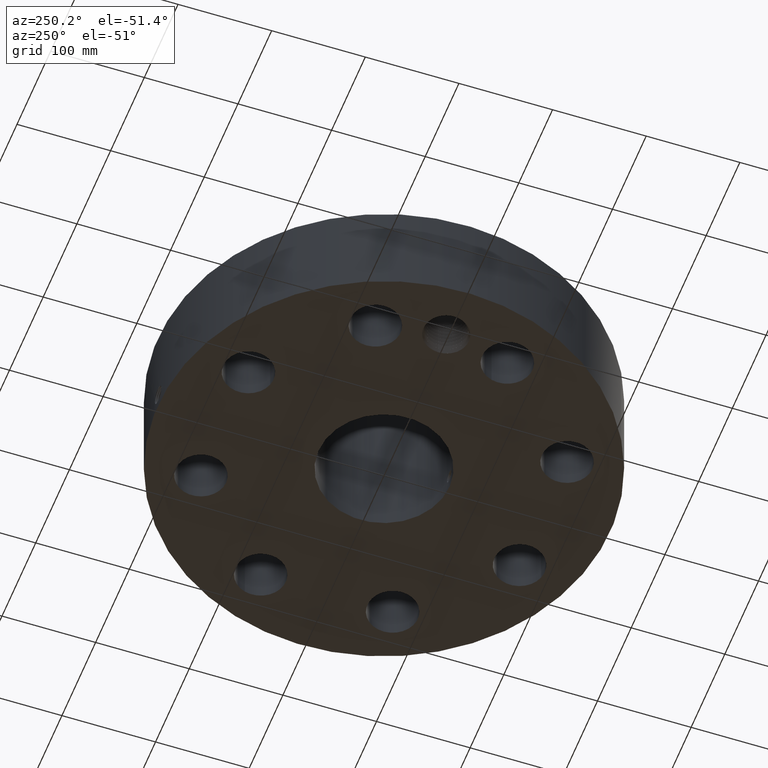
[diagram: clean part render]
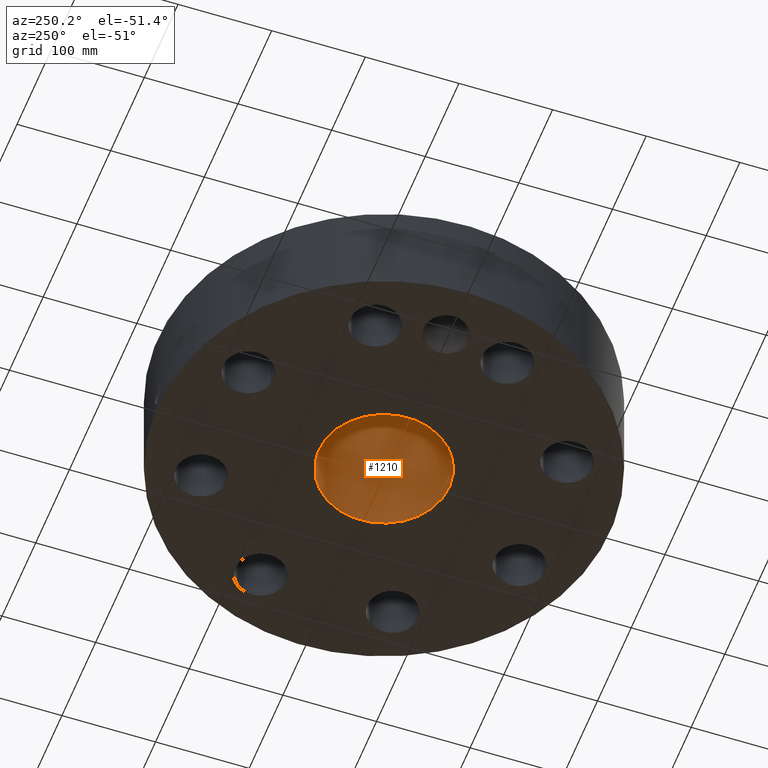
[diagram: same view with one face highlighted and labeled with its STEP entity id]
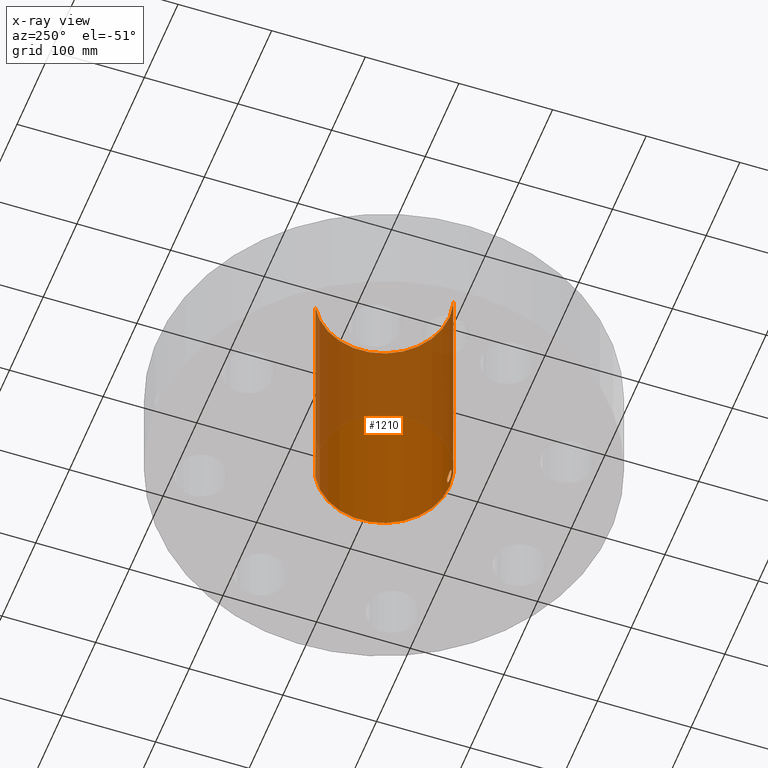
[diagram: x-ray of the same camera — body ghosted, the highlighted face saturated]
A machine part, auxiliary view. The second image highlights one B-rep face of the part: STEP entity #1210.
The next image is the same camera in x-ray: the body ghosted, the highlighted face saturated — about 49% of this face is hidden behind the body in this view.
In plain terms, the highlighted cylindrical surface (partial cylindrical patch) has radius 69.8627 mm, axis along (0, 0, -1).
Its self-contained STEP definition (entity closure, byte-faithful):
#262=AXIS2_PLACEMENT_3D('Circle Axis2P3D',#260,#261,$) ;
#1141=AXIS2_PLACEMENT_3D('Cylinder Axis2P3D',#1138,#1139,#1140) ;
#1145=AXIS2_PLACEMENT_3D('Circle Axis2P3D',#1143,#1144,$) ;
#260=CARTESIAN_POINT('Axis2P3D Location',(0.,0.,0.250000000001)) ;
#264=CARTESIAN_POINT('Vertex',(1.31865994394,2.41379083649,0.250000000001)) ;
#266=CARTESIAN_POINT('Vertex',(-1.31865994394,-2.41379083649,0.250000000001)) ;
#1138=CARTESIAN_POINT('Axis2P3D Location',(0.,0.,5.62500000002)) ;
#1143=CARTESIAN_POINT('Axis2P3D Location',(0.,0.,11.)) ;
#1147=CARTESIAN_POINT('Vertex',(1.31865994394,2.41379083649,11.)) ;
#1149=CARTESIAN_POINT('Vertex',(-1.31865994394,-2.41379083649,11.)) ;
#1152=CARTESIAN_POINT('Line Origine',(1.31865994394,2.41379083649,5.62500000002)) ;
#1157=CARTESIAN_POINT('Line Origine',(-1.31865994394,-2.41379083649,5.62500000002)) ;
#1169=CARTESIAN_POINT('Control Point',(0.219395640473,-2.74173591051,0.820143615352)) ;
#1170=CARTESIAN_POINT('Control Point',(0.206922438986,-2.74273402489,0.797311573179)) ;
#1171=CARTESIAN_POINT('Control Point',(0.191482197407,-2.74389817803,0.776107712363)) ;
#1172=CARTESIAN_POINT('Control Point',(0.173355462846,-2.74513814847,0.757041277917)) ;
#1173=CARTESIAN_POINT('Control Point',(0.112208531072,-2.74872104249,0.707601611984)) ;
#1174=CARTESIAN_POINT('Control Point',(0.0351066648614,-2.75104878289,0.684055955062)) ;
#1175=CARTESIAN_POINT('Control Point',(-0.0194282482728,-2.75122549506,0.682387761071)) ;
#1176=CARTESIAN_POINT('Control Point',(-0.123974646315,-2.74867194517,0.707462291629)) ;
#1177=CARTESIAN_POINT('Control Point',(-0.202995905262,-2.74337097236,0.780220189326)) ;
#1178=CARTESIAN_POINT('Control Point',(-0.232014472958,-2.74075297902,0.826347305928)) ;
#1179=CARTESIAN_POINT('Control Point',(-0.255807198668,-2.7385863664,0.904537485499)) ;
#1180=CARTESIAN_POINT('Control Point',(-0.248341438407,-2.73926556698,0.98401198842)) ;
#1181=CARTESIAN_POINT('Control Point',(-0.242106261575,-2.73984157298,1.01066863875)) ;
#1182=CARTESIAN_POINT('Control Point',(-0.232351518213,-2.74069917204,1.03614080953)) ;
#1183=CARTESIAN_POINT('Control Point',(-0.219395640473,-2.74173591051,1.05985638466)) ;
#1184=CARTESIAN_POINT('Vertex',(0.219395640473,-2.74173591051,0.820143615352)) ;
#1186=CARTESIAN_POINT('Vertex',(-0.219395640473,-2.74173591051,1.05985638466)) ;
#1190=CARTESIAN_POINT('Control Point',(-0.219395640473,-2.74173591051,1.05985638466)) ;
#1191=CARTESIAN_POINT('Control Point',(-0.206922438988,-2.74273402489,1.08268842683)) ;
#1192=CARTESIAN_POINT('Control Point',(-0.191482197411,-2.74389817803,1.10389228764)) ;
#1193=CARTESIAN_POINT('Control Point',(-0.173355462843,-2.74513814847,1.12295872209)) ;
#1194=CARTESIAN_POINT('Control Point',(-0.112208531074,-2.74872104249,1.17239838802)) ;
#1195=CARTESIAN_POINT('Control Point',(-0.0351066648728,-2.75104878289,1.19594404494)) ;
#1196=CARTESIAN_POINT('Control Point',(0.0194282482787,-2.75122549506,1.19761223893)) ;
#1197=CARTESIAN_POINT('Control Point',(0.123974646312,-2.74867194517,1.17253770838)) ;
#1198=CARTESIAN_POINT('Control Point',(0.202995905256,-2.74337097236,1.09977981069)) ;
#1199=CARTESIAN_POINT('Control Point',(0.232014472958,-2.74075297902,1.05365269408)) ;
#1200=CARTESIAN_POINT('Control Point',(0.255807198666,-2.7385863664,0.975462514514)) ;
#1201=CARTESIAN_POINT('Control Point',(0.248341438409,-2.73926556698,0.895988011601)) ;
#1202=CARTESIAN_POINT('Control Point',(0.242106261571,-2.73984157298,0.869331361252)) ;
#1203=CARTESIAN_POINT('Control Point',(0.232351518211,-2.74069917204,0.843859190474)) ;
#1204=CARTESIAN_POINT('Control Point',(0.219395640473,-2.74173591051,0.820143615352)) ;
#261=DIRECTION('Axis2P3D Direction',(0.,0.,-0.0393700787402)) ;
#1139=DIRECTION('Axis2P3D Direction',(0.,0.,-0.0393700787402)) ;
#1140=DIRECTION('Axis2P3D XDirection',(-0.0188750212049,-0.0345504945626,0.)) ;
#1144=DIRECTION('Axis2P3D Direction',(0.,0.,-0.0393700787402)) ;
#1153=DIRECTION('Vector Direction',(0.,0.,-0.0393700787402)) ;
#1158=DIRECTION('Vector Direction',(0.,0.,-0.0393700787402)) ;
#1154=VECTOR('Line Direction',#1153,0.0393700787402) ;
#1159=VECTOR('Line Direction',#1158,0.0393700787402) ;
#1163=ORIENTED_EDGE('',*,*,#1151,.F.) ;
#1164=ORIENTED_EDGE('',*,*,#1156,.T.) ;
#1165=ORIENTED_EDGE('',*,*,#268,.T.) ;
#1166=ORIENTED_EDGE('',*,*,#1161,.F.) ;
#1207=ORIENTED_EDGE('',*,*,#1188,.F.) ;
#1208=ORIENTED_EDGE('',*,*,#1205,.F.) ;
#1209=FACE_BOUND('',#1206,.T.) ;
#1210=ADVANCED_FACE('PartBody',(#1167,#1209),#1142,.F.) ;
#1168=B_SPLINE_CURVE_WITH_KNOTS('',5,(#1169,#1170,#1171,#1172,#1173,#1174,#1175,#1176,#1177,#1178,#1179,#1180,#1181,#1182,#1183),.UNSPECIFIED.,.F.,.U.,(6,3,3,3,6),(0.,4.67621911546,14.0195142913,23.369385725,28.2265607819),.UNSPECIFIED.) ;
#1189=B_SPLINE_CURVE_WITH_KNOTS('',5,(#1190,#1191,#1192,#1193,#1194,#1195,#1196,#1197,#1198,#1199,#1200,#1201,#1202,#1203,#1204),.UNSPECIFIED.,.F.,.U.,(6,3,3,3,6),(0.,4.67621911486,14.01951429,23.3693857231,28.226560779),.UNSPECIFIED.) ;
#263=CIRCLE('generated circle',#262,2.75050000001) ;
#1146=CIRCLE('generated circle',#1145,2.75050000001) ;
#1142=CYLINDRICAL_SURFACE('generated cylinder',#1141,2.75050000001) ;
#268=EDGE_CURVE('',#265,#267,#263,.T.) ;
#1151=EDGE_CURVE('',#1148,#1150,#1146,.T.) ;
#1156=EDGE_CURVE('',#1148,#265,#1155,.T.) ;
#1161=EDGE_CURVE('',#1150,#267,#1160,.T.) ;
#1188=EDGE_CURVE('',#1185,#1187,#1168,.T.) ;
#1205=EDGE_CURVE('',#1187,#1185,#1189,.T.) ;
#1162=EDGE_LOOP('',(#1163,#1164,#1165,#1166)) ;
#1206=EDGE_LOOP('',(#1207,#1208)) ;
#1167=FACE_OUTER_BOUND('',#1162,.T.) ;
#1155=LINE('Line',#1152,#1154) ;
#1160=LINE('Line',#1157,#1159) ;
#265=VERTEX_POINT('',#264) ;
#267=VERTEX_POINT('',#266) ;
#1148=VERTEX_POINT('',#1147) ;
#1150=VERTEX_POINT('',#1149) ;
#1185=VERTEX_POINT('',#1184) ;
#1187=VERTEX_POINT('',#1186) ;